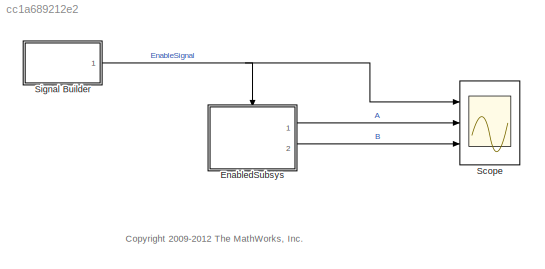
MODEL slx_cc1a689212e2
KIND model
CONFIG AbsTol = auto
CONFIG EnableMultiTasking = on
CONFIG FixedStep = .1
CONFIG MaxStep = auto
CONFIG MinStep = auto
CONFIG RelTol = 1e-3
CONFIG SampleTimeConstraint = Unconstrained
CONFIG Solver = FixedStepDiscrete
CONFIG SolverName = FixedStepDiscrete
CONFIG StartTime = 0.0
CONFIG StopTime = 15.0
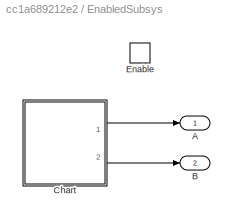
BLOCK [SubSystem] EnabledSubsys
  Ports = [0, 2, 1]
  RequestExecContextInheritance = off
  Variant = off
BLOCK [Outport] EnabledSubsys/A
  IconDisplay = Port number
BLOCK [Outport] EnabledSubsys/B
  IconDisplay = Port number
  Port = 2
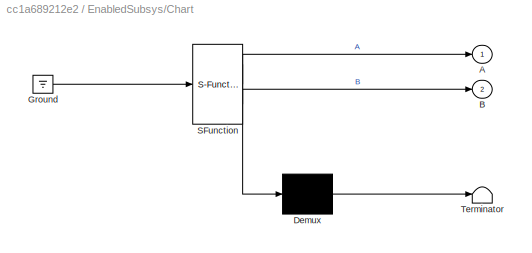
BLOCK [SubSystem] EnabledSubsys/Chart
  ErrorFcn = Stateflow.Translate.translate
  PermitHierarchicalResolution = ExplicitOnly
  Ports = [0, 2]
  RequestExecContextInheritance = off
  SFBlockType = Chart
  TreatAsAtomicUnit = on
  Variant = off
BLOCK [Outport] EnabledSubsys/Chart/ A
  IconDisplay = Port number
BLOCK [Outport] EnabledSubsys/Chart/ B
  IconDisplay = Port number
  Port = 2
BLOCK [Demux] EnabledSubsys/Chart/ Demux 
  Outputs = 1
  Ports = [1, 1]
BLOCK [Ground] EnabledSubsys/Chart/ Ground 
BLOCK [S-Function] EnabledSubsys/Chart/ SFunction 
  EnableBusSupport = off
  FunctionName = sf_sfun
  PortCounts = [1 3]
  Ports = [1, 3]
  SFcnIsStateOwnerBlock = off
  SFunctionDeploymentMode = off
  Tag = Stateflow S-Function sf_abstemporal_enable 1
BLOCK [Terminator] EnabledSubsys/Chart/ Terminator 
BLOCK [EnablePort] EnabledSubsys/Enable
  Ports = []
  PropagateVarSize = During execution
BLOCK [Scope] Scope
  NumInputPorts = 3
  Ports = [3]
  ScopeSpecificationString = Simulink.scopes.TimeScopeBlockCfg('CurrentConfiguration', extmgr.ConfigurationSet(extmgr.Configuration('Core','General UI',true),extmgr.Configuration('Core','Source UI',true),extmgr.Configuration('Sources','WiredSimulink',true,'DataLoggingSaveFormat','StructureWithTime','DataLoggingLimitDataPoints',true,'DataLoggingDecimation','1','DataLoggingDecimateData',true),extmgr.Configuration('Visuals','Tim...<+3023ch>
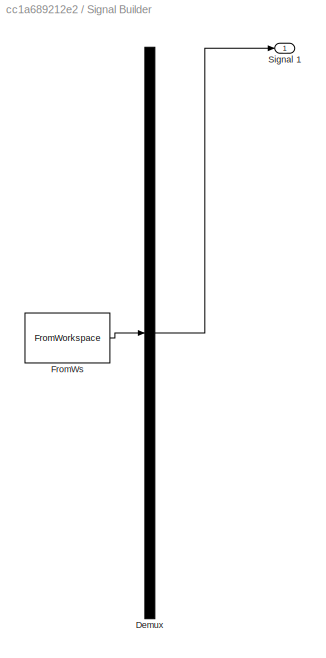
BLOCK [SubSystem] Signal Builder
  ClipboardFcn = sigbuilder_block('clipboard');
  CloseFcn = sigbuilder_block('close');
  ContinueFcn = sigbuilder_block('continue')
  CopyFcn = sigbuilder_block('copy');
  DeleteFcn = sigbuilder_block('delete');
  LoadFcn = sigbuilder_block('load');
  MaskHideContents = on
  ModelCloseFcn = sigbuilder_block('modelClose');
  NameChangeFcn = sigbuilder_block('namechange');
  OpenFcn = sigbuilder_block('open',[437.25 199.5 550.5 399.75 ]);
  PauseFcn = sigbuilder_block('pause')
  Ports = [0, 1]
  PreSaveFcn = sigbuilder_block('preSave');
  RequestExecContextInheritance = off
  StartFcn = sigbuilder_block('start');
  StopFcn = sigbuilder_block('stop');
  Tag = STV Subsys
  Variant = off
BLOCK [Demux] Signal Builder/Demux
  Outputs = 1
  Ports = [1, 1]
  Tag = STV Demux
BLOCK [FromWorkspace] Signal Builder/FromWs
  SampleTime = 0
  Tag = STV FromWs
  VariableName = tuvar
  ZeroCross = on
BLOCK [Outport] Signal Builder/Signal 1
  IconDisplay = Port number
  Tag = STV Outport
ANNOTATION (root): <copyright redacted>
LINE EnabledSubsys/Chart:1 -> EnabledSubsys/A:1
LINE EnabledSubsys/Chart:2 -> EnabledSubsys/B:1
LINE EnabledSubsys:1 -> Scope:2
LINE EnabledSubsys:2 -> Scope:3
NET Signal Builder:1 -> EnabledSubsys:enable, Scope:1
note: NET lines group one-source signal fan-out (src -> all destinations, sorted); 1:1 wires keep LINE
CHART EnabledSubsys/Chart states=2 transitions=2
  STATE_LABEL 'A'
  STATE_LABEL 'B'
